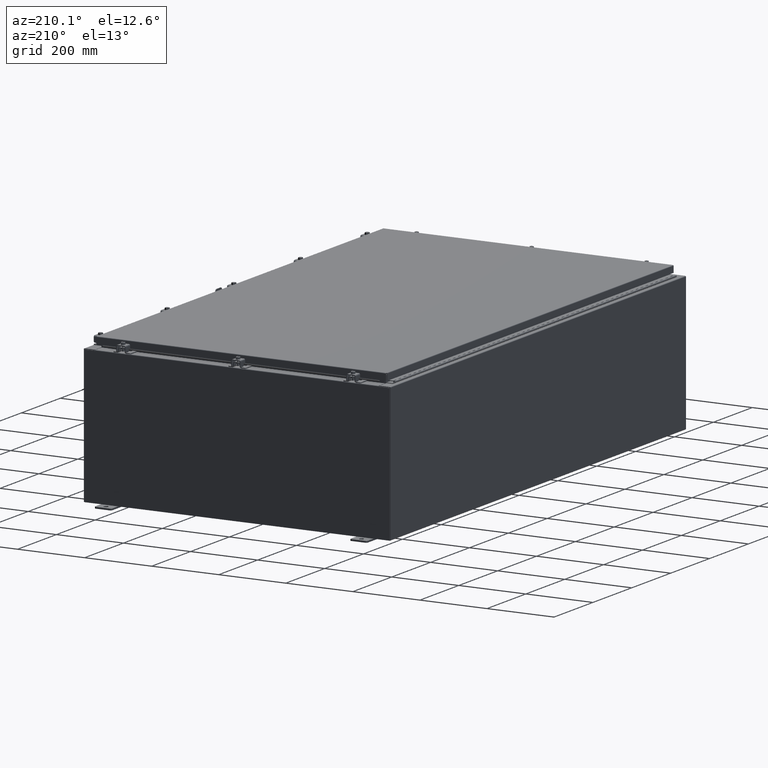
[diagram: clean part render]
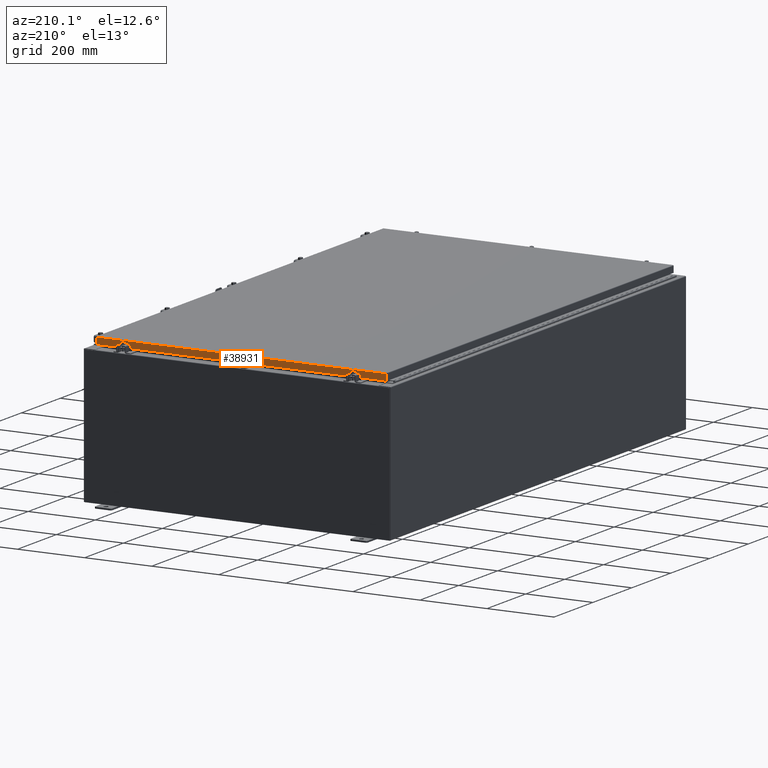
[diagram: same view with one face highlighted and labeled with its STEP entity id]
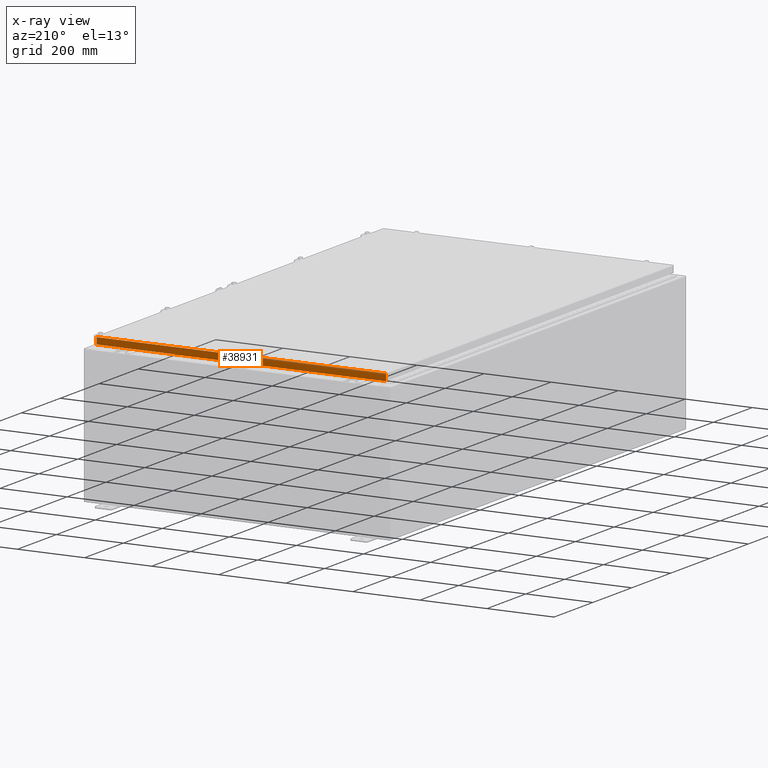
[diagram: x-ray of the same camera — body ghosted, the highlighted face saturated]
A machine part, auxiliary view. The second image highlights one B-rep face of the part: STEP entity #38931.
The next image is the same camera in x-ray: the body ghosted, the highlighted face saturated — about 0% of this face is hidden behind the body in this view.
In plain terms, the highlighted planar face has unit normal (0, -1, -0).
Its self-contained STEP definition (entity closure, byte-faithful):
#1822 = EDGE_LOOP ( 'NONE', ( #21215, #55603, #39666, #44929, #36328, #25507 ) ) ;
#4504 = DIRECTION ( 'NONE',  ( -1.000000000000000000, -6.989207801985677300E-031, -3.922586267643528000E-045 ) ) ;
#5866 = DIRECTION ( 'NONE',  ( 6.989207801985676400E-031, -1.000000000000000000, -5.637761885544689500E-015 ) ) ;
#6258 = EDGE_CURVE ( 'NONE', #28651, #14385, #18488, .T. ) ;
#8547 = EDGE_CURVE ( 'NONE', #32663, #28651, #59358, .T. ) ;
#9625 = LINE ( 'NONE', #61683, #21045 ) ;
#12715 = CARTESIAN_POINT ( 'NONE',  ( 16.98915786437627100, 29.09400000000000500, -0.8499999999999996400 ) ) ;
#14385 = VERTEX_POINT ( 'NONE', #38514 ) ;
#14707 = CARTESIAN_POINT ( 'NONE',  ( 16.23915786437627100, 29.09400000000000100, -0.8500000000000037500 ) ) ;
#16993 = VECTOR ( 'NONE', #50330, 39.37007874015748100 ) ;
#17148 = VECTOR ( 'NONE', #33955, 39.37007874015748100 ) ;
#17888 = DIRECTION ( 'NONE',  ( 0.0000000000000000000, 5.637761885544689500E-015, -1.000000000000000000 ) ) ;
#18315 = VECTOR ( 'NONE', #31013, 39.37007874015748100 ) ;
#18488 = LINE ( 'NONE', #21236, #16993 ) ;
#19630 = EDGE_CURVE ( 'NONE', #39459, #31752, #31262, .T. ) ;
#21045 = VECTOR ( 'NONE', #17888, 39.37007874015748100 ) ;
#21215 = ORIENTED_EDGE ( 'NONE', *, *, #8547, .F. ) ;
#21236 = CARTESIAN_POINT ( 'NONE',  ( -16.98915786437626400, 29.09400000000000100, -0.07469999999999958600 ) ) ;
#24187 = FACE_OUTER_BOUND ( 'NONE', #1822, .T. ) ;
#25202 = PLANE ( 'NONE',  #27052 ) ;
#25507 = ORIENTED_EDGE ( 'NONE', *, *, #6258, .F. ) ;
#26772 = CARTESIAN_POINT ( 'NONE',  ( 16.98915786437627100, 29.09400000000000100, -0.08769999999999547600 ) ) ;
#27052 = AXIS2_PLACEMENT_3D ( 'NONE', #49406, #5866, #39871 ) ;
#28651 = VERTEX_POINT ( 'NONE', #34775 ) ;
#31013 = DIRECTION ( 'NONE',  ( 1.000000000000000000, -0.0000000000000000000, 1.239713195391617400E-016 ) ) ;
#31262 = LINE ( 'NONE', #60132, #18315 ) ;
#31563 = VECTOR ( 'NONE', #52098, 39.37007874015748100 ) ;
#31752 = VERTEX_POINT ( 'NONE', #12715 ) ;
#32663 = VERTEX_POINT ( 'NONE', #26772 ) ;
#33955 = DIRECTION ( 'NONE',  ( 1.000000000000000000, -0.0000000000000000000, -0.0000000000000000000 ) ) ;
#34775 = CARTESIAN_POINT ( 'NONE',  ( -16.98915786437626400, 29.09400000000000100, -0.08769999999999549000 ) ) ;
#36328 = ORIENTED_EDGE ( 'NONE', *, *, #59242, .F. ) ;
#38514 = CARTESIAN_POINT ( 'NONE',  ( -16.98915786437626400, 29.09400000000000500, -0.8500000000000038600 ) ) ;
#38931 = ADVANCED_FACE ( 'NONE', ( #24187 ), #25202, .F. ) ;
#39459 = VERTEX_POINT ( 'NONE', #14707 ) ;
#39666 = ORIENTED_EDGE ( 'NONE', *, *, #19630, .F. ) ;
#39871 = DIRECTION ( 'NONE',  ( 0.0000000000000000000, 5.637761885544689500E-015, -1.000000000000000000 ) ) ;
#42359 = CARTESIAN_POINT ( 'NONE',  ( -17.07799999999999600, 29.09400000000000500, -0.8500000000000038600 ) ) ;
#44482 = LINE ( 'NONE', #42359, #31563 ) ;
#44591 = CARTESIAN_POINT ( 'NONE',  ( -16.23915786437625600, 29.09400000000000100, -0.8500000000000037500 ) ) ;
#44929 = ORIENTED_EDGE ( 'NONE', *, *, #53858, .F. ) ;
#46420 = VECTOR ( 'NONE', #4504, 39.37007874015748100 ) ;
#48043 = CARTESIAN_POINT ( 'NONE',  ( -17.07799999999999600, 29.09400000000000100, -0.08769999999999547600 ) ) ;
#49406 = CARTESIAN_POINT ( 'NONE',  ( -2.033440117909712900E-029, 29.09400000000000100, 1.642858579540487400E-013 ) ) ;
#50330 = DIRECTION ( 'NONE',  ( -0.0000000000000000000, 5.637761885544689500E-015, -1.000000000000000000 ) ) ;
#51787 = VERTEX_POINT ( 'NONE', #44591 ) ;
#52098 = DIRECTION ( 'NONE',  ( 1.000000000000000000, -0.0000000000000000000, 1.239713195391617400E-016 ) ) ;
#53106 = EDGE_CURVE ( 'NONE', #32663, #31752, #9625, .T. ) ;
#53858 = EDGE_CURVE ( 'NONE', #51787, #39459, #54390, .T. ) ;
#54390 = LINE ( 'NONE', #58184, #17148 ) ;
#55603 = ORIENTED_EDGE ( 'NONE', *, *, #53106, .T. ) ;
#58184 = CARTESIAN_POINT ( 'NONE',  ( -16.23915786437626400, 29.09400000000000100, -0.8500000000000037500 ) ) ;
#59242 = EDGE_CURVE ( 'NONE', #14385, #51787, #44482, .T. ) ;
#59358 = LINE ( 'NONE', #48043, #46420 ) ;
#60132 = CARTESIAN_POINT ( 'NONE',  ( -17.07799999999999600, 29.09400000000000500, -0.8500000000000038600 ) ) ;
#61683 = CARTESIAN_POINT ( 'NONE',  ( 16.98915786437627100, 29.09400000000000100, 1.642858579540487400E-013 ) ) ;